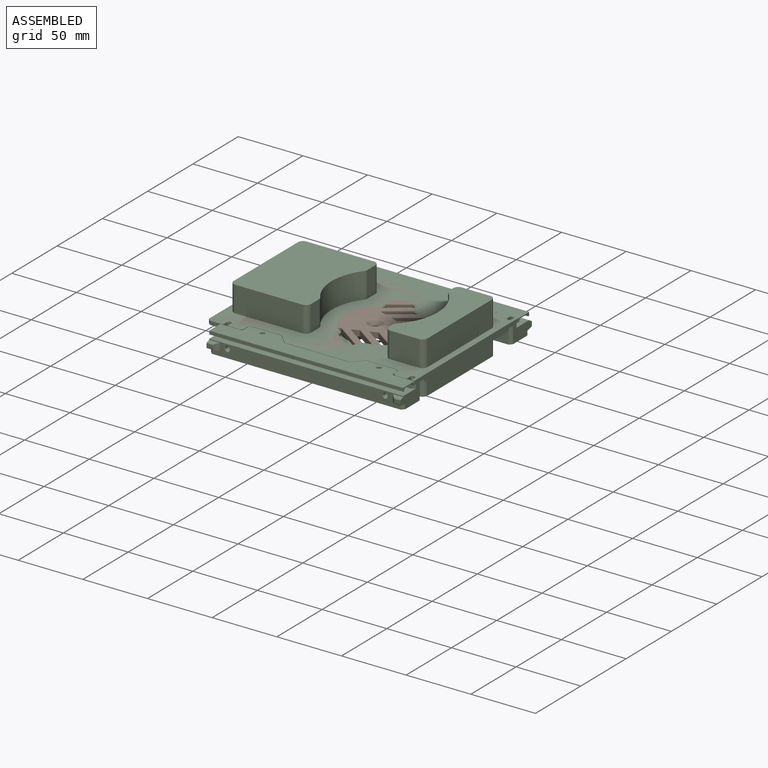
[diagram: assembled view]
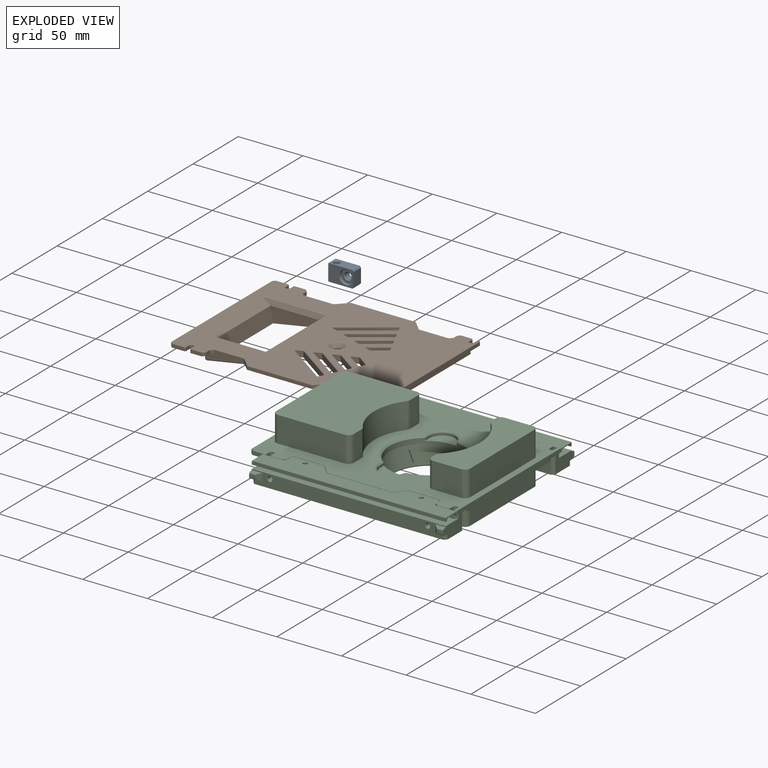
[diagram: exploded view]
GUIDED TOUR — FREECAD ASSEMBLY "clip-panneau"

This assembly has 3 components, labeled P0..P2 below (a component is one placed body or linked part; the same part can appear more than once), held together by 0 modeled joints plus 3 derived contact edges. A joint is a constraint between two components; its type names the relative motion it leaves free:
  CONTACT — a derived adjacency edge — the two components touch in the source model (clearance under 2% of the assembly's diagonal); it is measured from the geometry, not a modeled constraint.
Axis/direction vectors are unit vectors and 'through' points are millimeter coordinates, both in the assembly's world frame.

MATES
  1. CONTACT "contact_0_1": P0 <-> P1, contact direction (0.000, -1.000, 0.000) through (-19.08, -10.01, -3.50) mm (derived from contact, not a modeled constraint)
  2. CONTACT "contact_0_2": P0 <-> P2, contact direction (0.666, -0.744, 0.060) through (-14.24, 2.24, -7.81) mm (derived from contact, not a modeled constraint)
  3. CONTACT "contact_1_2": P1 <-> P2, contact direction (1.000, 0.000, 0.000) through (128.00, -21.00, -5.50) mm (derived from contact, not a modeled constraint)

ASSEMBLY ORDER
  1. P0 — the base component [order heuristic]
  2. P1 [order heuristic]
  3. P2 [order heuristic]
Order-tag legend:
  [order heuristic] — this assembly is geometrically interlocked (no collision-free removal order exists), so components are listed in mate-graph order; insertion feasibility is not verified.

Of the 3 components, 3 carry a construction recipe — the FreeCAD feature program (sketches with constraints, then the solid features that consume them) that regenerates the part from scratch, quoted from this document or from the linked companion document it references; the rest are supplied as boundary geometry only. The tour below walks the components in assembly order: each is shown spotlighted twice — in the assembled view, then in the exploded view, where a leader line traces a displaced component back to its assembled socket (components that stay in place when exploded have no leader line; saturated green if recipe-attached, orange if geometry-only; every other component desaturated gray) — followed by its recipe or geometry summary and the mates that hold it.
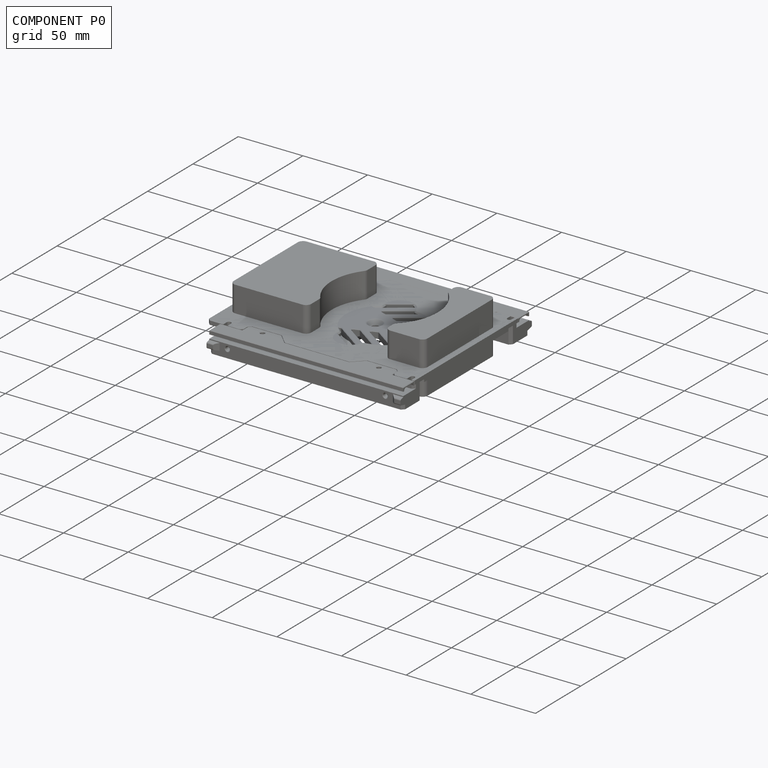
[diagram: component P0 — assembled]
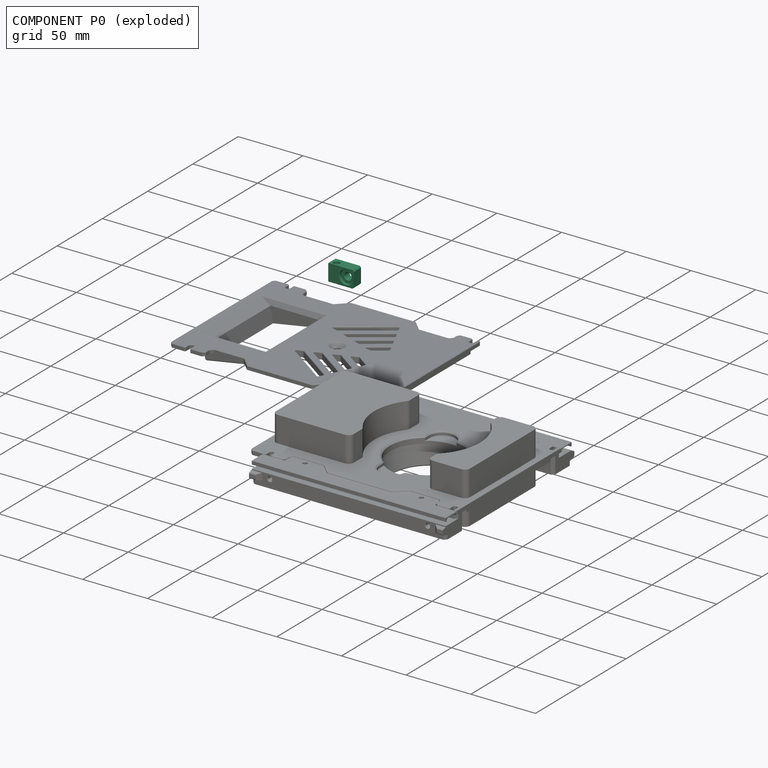
[diagram: component P0 — exploded]
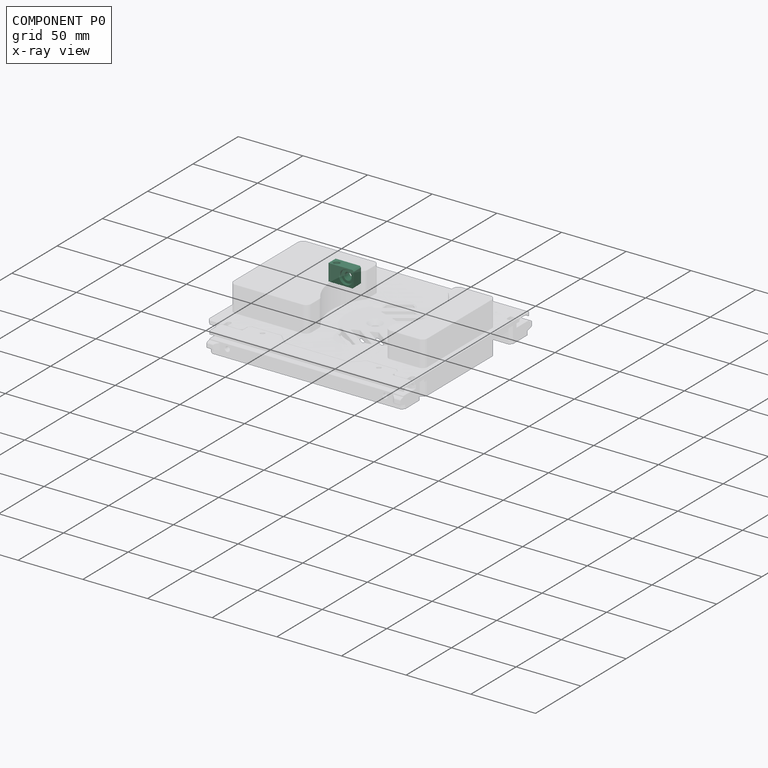
[diagram: component P0 — x-ray view]
COMPONENT P0 — recipe-attached ("clip-panneau-3mm", modeled in this document).
Held by: resting contact with P1 (derived edge); resting contact with P2 (derived edge).
Construction recipe (the document's own serialized feature program — sketch geometry with constraints, then the solid features built on it; lengths are millimeters unless a unit is written):

FEATURE [Sketcher::SketchObject] Sketch
  ArcFitTolerance = 1e-06
  AttachmentSupport = -> [Origin]
  ExternalTypes = [0]
  FullyConstrained = true
  MakeInternals = false
  MapMode = 5
  Placement = pos=(0,0,0) rot=(1,0,0;1.5708rad)
  sketch-geometry (6):
    g0: LineSegment StartX=0 StartY=-3.5 StartZ=0 EndX=-20 EndY=-3.5 EndZ=0
    g1: LineSegment StartX=-20 StartY=-3.5 StartZ=0 EndX=-20 EndY=-16.5 EndZ=0
    g2: LineSegment StartX=-20 StartY=-16.5 StartZ=0 EndX=0 EndY=-16.5 EndZ=0
    g3: LineSegment StartX=0 StartY=-16.5 StartZ=0 EndX=0 EndY=-3.5 EndZ=0
    g4: Circle CenterX=-6 CenterY=-10 CenterZ=0 NormalX=0 NormalY=0 NormalZ=1 AngleXU=0 Radius=2.7
    g5: Circle [constr] CenterX=-6 CenterY=-10 CenterZ=0 NormalX=0 NormalY=0 NormalZ=1 AngleXU=0 Radius=5
  constraints (17):
    c: Coincident(g0,g1)
    c: Coincident(g1,g2)
    c: Coincident(g2,g3)
    c: Coincident(g3,g0)
    c: Horizontal(g0)
    c: Horizontal(g2)
    c: Vertical(g1)
    c: Vertical(g3)
    c: PointOnObject(g0,g-2)
    c: Distance(g2,g-1) = 16.5
    c: Distance(g0,g-1) = 3.5
    c: Diameter(g4) = 5.4
    c: DistanceY(g4,g-1) = 10
    c: DistanceX(g4,g-1) = 6
    c: Coincident(g5,g4)
    c: Diameter(g5) = 10
    c: DistanceX(g0,g0) = 20
FEATURE [PartDesign::Pad] Pad
  Direction = (0,-1,2e-16)
  Length = 8
  Length2 = 10
  Profile = -> Sketch
  ReferenceAxis = -> Sketch [N_Axis]
  Refine = true
  SideType = 0
  Suppressed = false
  Type = 0
  Type2 = 0
FEATURE [Sketcher::SketchObject] Sketch001
  ArcFitTolerance = 1e-06
  AttachmentSupport = -> [Pad]
  ExternalTypes = [0]
  FullyConstrained = true
  MakeInternals = false
  MapMode = 5
  Placement = pos=(0,-8,0) rot=(1,0,0;1.5708rad)
  sketch-geometry (1):
    g0: Circle CenterX=-6 CenterY=-10 CenterZ=0 NormalX=0 NormalY=0 NormalZ=1 AngleXU=0 Radius=5
  constraints (2):
    c: Coincident(g0,g-3)
    c: Diameter(g0) = 10
FEATURE [PartDesign::Pocket] Pocket
  BaseFeature = -> Pad
  Direction = (0,1,-2e-16)
  Length = 2
  Length2 = 5
  Profile = -> Sketch001
  ReferenceAxis = -> Sketch001 [N_Axis]
  Refine = true
  SideType = 0
  Suppressed = false
  Type = 0
  Type2 = 0
FEATURE [Sketcher::SketchObject] Sketch002
  ArcFitTolerance = 1e-06
  AttachmentSupport = -> [Pocket]
  ExternalGeometry = -> [Pocket]
  ExternalTypes = [0,0]
  FullyConstrained = true
  MakeInternals = false
  MapMode = 5
  Placement = pos=(0,-8e-16,-3.5) rot=(0,0,1;0rad)
  sketch-geometry (2):
    g0: Circle CenterX=-16 CenterY=-4 CenterZ=0 NormalX=0 NormalY=0 NormalZ=1 AngleXU=0 Radius=2.3
    g1: LineSegment [constr] StartX=-20 StartY=-4 StartZ=0 EndX=-16 EndY=-4 EndZ=0
  constraints (5):
    c: Diameter(g0) = 4.6
    c: Symmetric(g-3,g-3,g1)
    c: Coincident(g1,g0)
    c: Horizontal(g1)
    c: DistanceX(g1,g1) = 4
FEATURE [PartDesign::Pocket] Pocket001
  BaseFeature = -> Pocket
  Direction = (0,0,-1)
  Length = 14
  Length2 = 5
  Profile = -> Sketch002
  ReferenceAxis = -> Sketch002 [N_Axis]
  Refine = true
  SideType = 0
  Suppressed = false
  Type = 0
  Type2 = 0
FEATURE [Sketcher::SketchObject] Sketch003
  ArcFitTolerance = 1e-06
  AttachmentSupport = -> [Pocket001]
  ExternalGeometry = -> [Pocket001]
  ExternalTypes = [0]
  FullyConstrained = true
  MakeInternals = false
  MapMode = 5
  Placement = pos=(-20,0,0) rot=(0.57735,-0.57735,-0.57735;2.0944rad)
  sketch-geometry (5):
    g0: LineSegment StartX=2.8e-15 StartY=-12.75 StartZ=0 EndX=-3 EndY=-12 EndZ=0
    g1: LineSegment StartX=-3 StartY=-12 StartZ=0 EndX=-3 EndY=-8 EndZ=0
    g2: LineSegment StartX=-3 StartY=-8 StartZ=0 EndX=1.8e-15 EndY=-7.25 EndZ=0
    g3: LineSegment StartX=1.8e-15 StartY=-7.25 StartZ=0 EndX=2.8e-15 EndY=-12.75 EndZ=0
    g4: LineSegment [constr] StartX=-3 StartY=-10 StartZ=0 EndX=2.2e-15 EndY=-10 EndZ=0
  constraints (14):
    c: Coincident(g0,g1)
    c: Vertical(g1)
    c: Coincident(g1,g2)
    c: PointOnObject(g2,g-3)
    c: Coincident(g2,g3)
    c: Coincident(g3,g0)
    c: PointOnObject(g0,g-3)
    c: Equal(g0,g2)
    c: Symmetric(g1,g1,g4)
    c: Symmetric(g3,g3,g4)
    c: Distance(g-1,g4) = 10
    c: DistanceY(g3,g3) = 5.5
    c: DistanceY(g1,g1) = 4
    c: DistanceX(g4,g4) = 3
FEATURE [PartDesign::Pad] Pad001
  BaseFeature = -> Pocket001
  Direction = (-1,0,0)
  Length = 5
  Length2 = 10
  Profile = -> Sketch003
  ReferenceAxis = -> Sketch003 [N_Axis]
  Refine = true
  Reversed = true
  SideType = 0
  Suppressed = false
  Type = 0
  Type2 = 0
FEATURE [PartDesign::Draft] Draft
  Angle = -45
  Base = -> Pad001 [Face8]
  BaseFeature = -> Pad001
  NeutralPlane = -> Pad001 [Face12]
  Refine = true
  SupportTransform = false
  Suppressed = false
FEATURE [PartDesign::Fillet] Fillet
  Base = -> Draft [Edge27,Edge22]
  BaseFeature = -> Draft
  Radius = 1
  Refine = true
  SupportTransform = false
  Suppressed = false
  UseAllEdges = false
FEATURE [PartDesign::Chamfer] Chamfer
  Angle = 45
  Base = -> Fillet [Edge28,Edge34]
  BaseFeature = -> Fillet
  ChamferType = 0
  FlipDirection = false
  Refine = true
  Size = 0.6
  Size2 = 1
  SupportTransform = false
  Suppressed = false
  UseAllEdges = false
FEATURE [PartDesign::Chamfer] Chamfer001
  Angle = 45
  Base = -> Chamfer [Edge38,Edge17,Edge20]
  BaseFeature = -> Chamfer
  ChamferType = 0
  FlipDirection = false
  Refine = true
  Size = 0.4
  Size2 = 1
  SupportTransform = false
  Suppressed = false
  UseAllEdges = false
FEATURE [PartDesign::Chamfer] Chamfer002
  Angle = 45
  Base = -> Chamfer001 [Edge13,Edge32]
  BaseFeature = -> Chamfer001
  ChamferType = 0
  FlipDirection = false
  Refine = true
  Size = 1
  Size2 = 1
  SupportTransform = false
  Suppressed = false
  UseAllEdges = false
FEATURE [PartDesign::Chamfer] Chamfer003
  Angle = 45
  Base = -> Chamfer002 [Face4]
  BaseFeature = -> Chamfer002
  ChamferType = 0
  FlipDirection = false
  Refine = true
  Size = 0.4
  Size2 = 1
  SupportTransform = false
  Suppressed = false
  UseAllEdges = false
FEATURE [Part::DatumPlane] DatumPlane
  AttachmentOffset = pos=(0,0,0) rot=(1,0,0;1.5708rad)
  AttachmentSupport = -> [Chamfer003]
  MapMode = 45
  Placement = pos=(-9.06941,-4,-10) rot=(0,0,1;0rad)
FEATURE [Sketcher::SketchObject] Sketch004
  ArcFitTolerance = 1e-06
  AttachmentSupport = -> [DatumPlane]
  ExternalGeometry = -> [Chamfer003]
  ExternalTypes = [0]
  FullyConstrained = true
  MakeInternals = false
  MapMode = 5
  Placement = pos=(-9.06941,-4,-10) rot=(0,0,1;0rad)
  sketch-geometry (1):
    g0: Circle CenterX=-6.93059 CenterY=0 CenterZ=0 NormalX=0 NormalY=0 NormalZ=1 AngleXU=0 Radius=2.75
  constraints (2):
    c: Coincident(g0,g-3)
    c: Diameter(g0) = 5.5
FEATURE [PartDesign::Pocket] Pocket002
  BaseFeature = -> Chamfer003
  Direction = (0,0,-1)
  Length = 3
  Length2 = 5
  Profile = -> Sketch004
  ReferenceAxis = -> Sketch004 [N_Axis]
  Refine = true
  SideType = 2
  Suppressed = false
  Type = 0
  Type2 = 0
FEATURE [PartDesign::Chamfer] Chamfer004
  Angle = 45
  Base = -> Pocket002 [Edge70,Edge73]
  BaseFeature = -> Pocket002
  ChamferType = 0
  FlipDirection = false
  Refine = true
  Size = 0.4
  Size2 = 1
  SupportTransform = false
  Suppressed = false
  UseAllEdges = false
FEATURE [PartDesign::Body] Body  label="clip-panneau-3mm"
  AllowCompound = true
  Group = -> [Sketch,Pad,Sketch001,Pocket,Sketch002,Pocket001,Sketch003,Pad001,Draft,Fillet,Chamfer,Chamfer001,Chamfer002,Chamfer003,DatumPlane,Sketch004,Pocket002,Chamfer004]
  Origin = -> Origin
  Tip = -> Chamfer004
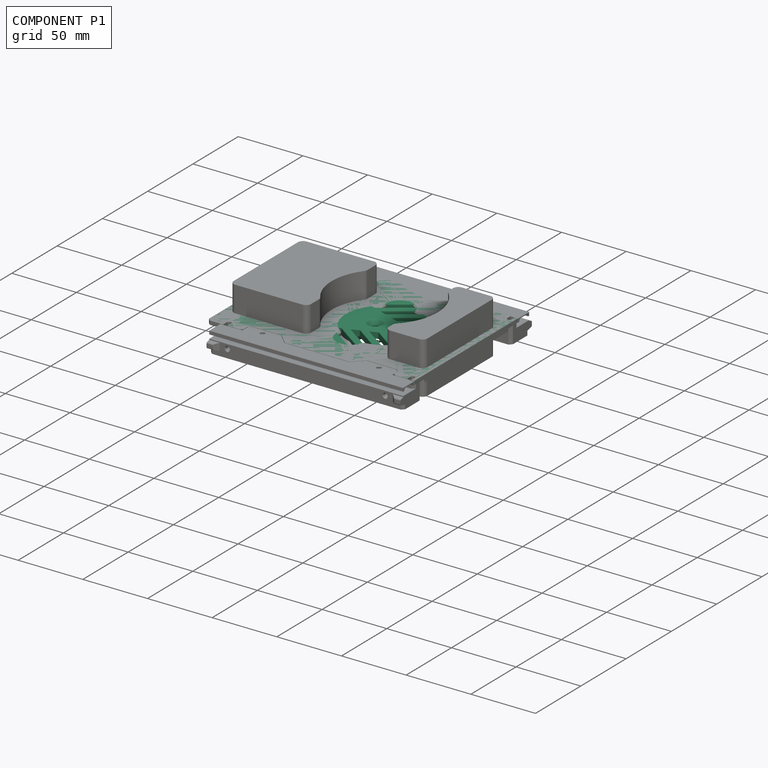
[diagram: component P1 — assembled]
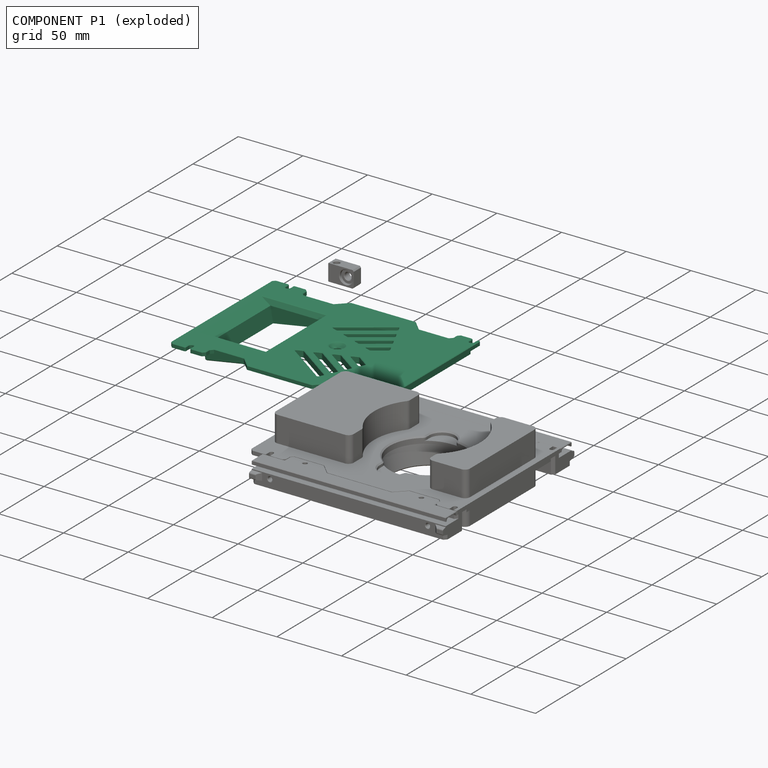
[diagram: component P1 — exploded]
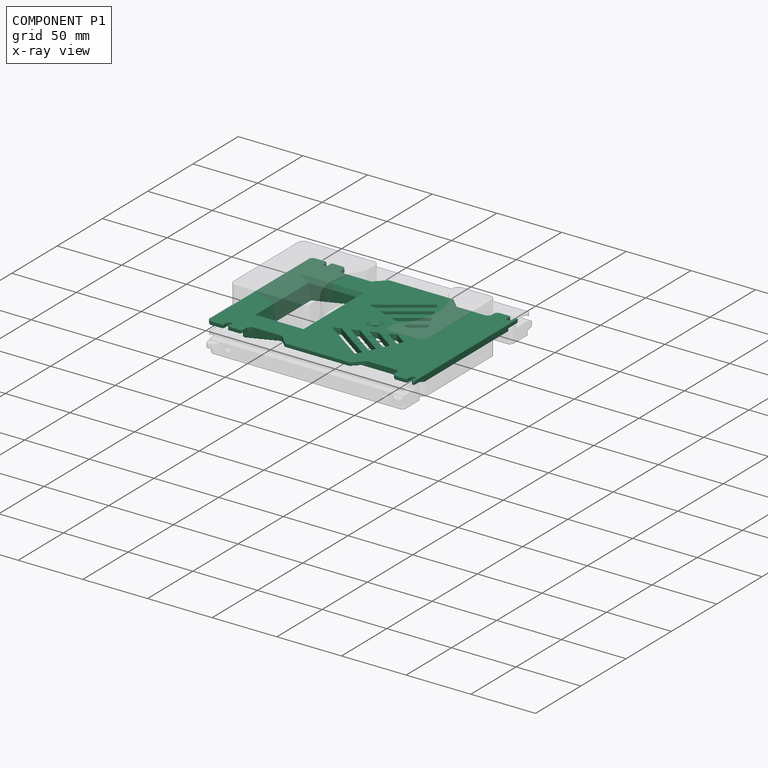
[diagram: component P1 — x-ray view]
COMPONENT P1 — recipe-attached ("Carter-top-Oled", modeled in this document).
Held by: resting contact with P0 (derived edge); resting contact with P2 (derived edge).
Construction recipe (the document's own serialized feature program — sketch geometry with constraints, then the solid features built on it; lengths are millimeters unless a unit is written):

FEATURE [PartDesign::FeatureBase] Clone001
  BaseFeature = -> Body003
  Suppressed = false
FEATURE [Part::DatumPlane] DatumPlane002
  AttachmentOffset = pos=(0,0,0) rot=(1,0,0;1.5708rad)
  AttachmentSupport = -> [Clone001]
  MapMode = 45
  Placement = pos=(55,-69.5,-2) rot=(1,0,0;1.5708rad)
FEATURE [Sketcher::SketchObject] Sketch021
  ArcFitTolerance = 1e-06
  AttachmentSupport = -> [DatumPlane002]
  ExternalGeometry = -> [Clone001]
  ExternalTypes = [0,0,0]
  FullyConstrained = true
  MakeInternals = false
  MapMode = 5
  Placement = pos=(55,-69.5,-2) rot=(1,0,0;1.5708rad)
  sketch-geometry (4):
    g0: LineSegment StartX=-24.2287 StartY=1.5 StartZ=0 EndX=-75 EndY=1.5 EndZ=0
    g1: LineSegment StartX=-75 StartY=1.5 StartZ=0 EndX=-72.0584 EndY=-15.1824 EndZ=0
    g2: LineSegment StartX=-72.0584 StartY=-15.1824 StartZ=0 EndX=-22.8181 EndY=-6.5 EndZ=0
    g3: LineSegment StartX=-22.8181 StartY=-6.5 StartZ=0 EndX=-24.2287 EndY=1.5 EndZ=0
  constraints (12):
    c: PointOnObject(g0,g-3)
    c: Horizontal(g0)
    c: Coincident(g1,g0)
    c: Coincident(g2,g1)
    c: Coincident(g3,g0)
    c: Parallel(g1,g3)
    c: Perpendicular(g2,g1)
    c: Distance(g2,g2) = 50
    c: Distance(g0,g-4) = 10
    c: Angle(g0,g2) = 0.174533
    c: Coincident(g3,g2)
    c: Distance(g2,g-5) = 3
FEATURE [PartDesign::Pad] Pad011
  BaseFeature = -> Clone001
  Direction = (0,-1,2e-16)
  Length = 75
  Length2 = 10
  Profile = -> Sketch021
  ReferenceAxis = -> Sketch021 [N_Axis]
  Refine = true
  SideType = 2
  Suppressed = false
  Type = 0
  Type2 = 0
FEATURE [Sketcher::SketchObject] Sketch022
  ArcFitTolerance = 1e-06
  AttachmentSupport = -> [Pad011]
  ExternalTypes = [0]
  FullyConstrained = true
  MakeInternals = false
  MapMode = 5
  Placement = pos=(2.42399,-3.1e-15,-13.7471) rot=(0.996195,0,0.087156;3.14159rad)
  sketch-geometry (6):
    g0: LineSegment [constr] StartX=-19.783 StartY=32 StartZ=0 EndX=30.217 EndY=107 EndZ=0
    g1: LineSegment StartX=-14.783 StartY=101 StartZ=0 EndX=-14.783 EndY=38 EndZ=0
    g2: LineSegment StartX=-14.783 StartY=38 StartZ=0 EndX=25.217 EndY=38 EndZ=0
    g3: LineSegment StartX=25.217 StartY=38 StartZ=0 EndX=25.217 EndY=101 EndZ=0
    g4: LineSegment StartX=25.217 StartY=101 StartZ=0 EndX=-14.783 EndY=101 EndZ=0
    g5: GeomPoint [constr] X=5.21702 Y=69.5 Z=0
  constraints (14):
    c: Coincident(g0,g-5)
    c: Coincident(g0,g-6)
    c: Coincident(g1,g2)
    c: Coincident(g2,g3)
    c: Coincident(g3,g4)
    c: Coincident(g4,g1)
    c: Vertical(g1)
    c: Vertical(g3)
    c: Horizontal(g2)
    c: Horizontal(g4)
    c: Symmetric(g3,g1,g5)
    c: Symmetric(g0,g0,g5)
    c: DistanceY(g3,g3) = 63
    c: Distance(g4,g4) = 40
FEATURE [PartDesign::Pocket] Pocket011
  BaseFeature = -> Pad011
  Direction = (-0.173648,0,0.984808)
  Length = 60
  Length2 = 5
  Profile = -> Sketch022
  ReferenceAxis = -> Sketch022 [N_Axis]
  Refine = true
  SideType = 0
  Suppressed = false
  Type = 0
  Type2 = 0
FEATURE [PartDesign::Chamfer] Chamfer016
  Angle = 45
  Base = -> Pocket011 [Edge167,Edge166,Edge165]
  BaseFeature = -> Pocket011
  ChamferType = 1
  FlipDirection = false
  Refine = true
  Size = 2
  Size2 = 4
  SupportTransform = false
  Suppressed = false
  UseAllEdges = false
FEATURE [PartDesign::Chamfer] Chamfer017
  Angle = 45
  Base = -> Chamfer016 [Edge2]
  BaseFeature = -> Chamfer016
  ChamferType = 1
  FlipDirection = false
  Refine = true
  Size = 8
  Size2 = 4.1
  SupportTransform = false
  Suppressed = false
  UseAllEdges = false
FEATURE [PartDesign::Fillet] Fillet006
  Base = -> Chamfer017 [Edge240,Edge237,Edge238,Edge239]
  BaseFeature = -> Chamfer017
  Radius = 2
  Refine = true
  SupportTransform = false
  Suppressed = false
  UseAllEdges = false
FEATURE [Sketcher::SketchObject] Sketch023
  ArcFitTolerance = 1e-06
  AttachmentSupport = -> [Fillet006]
  ExternalGeometry = -> [Fillet006]
  ExternalTypes = [0,0]
  FullyConstrained = true
  MakeInternals = false
  MapMode = 5
  Placement = pos=(2.42399,-3.1e-15,-13.7471) rot=(0.996195,0,0.087156;3.14159rad)
  sketch-geometry (10):
    g0: LineSegment [constr] StartX=-14.783 StartY=38 StartZ=0 EndX=25.217 EndY=101 EndZ=0
    g1: LineSegment [constr] StartX=-16.543 StartY=36.62 StartZ=0 EndX=26.977 EndY=36.62 EndZ=0
    g2: LineSegment [constr] StartX=26.977 StartY=36.62 StartZ=0 EndX=26.977 EndY=102.38 EndZ=0
    g3: LineSegment [constr] StartX=26.977 StartY=102.38 StartZ=0 EndX=-16.543 EndY=102.38 EndZ=0
    g4: LineSegment [constr] StartX=-16.543 StartY=102.38 StartZ=0 EndX=-16.543 EndY=36.62 EndZ=0
    g5: GeomPoint [constr] X=5.21702 Y=69.5 Z=0
    g6: Circle CenterX=26.977 CenterY=102.38 CenterZ=0 NormalX=0 NormalY=0 NormalZ=1 AngleXU=0 Radius=1.7
    g7: Circle CenterX=-16.543 CenterY=102.38 CenterZ=0 NormalX=0 NormalY=0 NormalZ=1 AngleXU=0 Radius=1.7
    g8: Circle CenterX=-16.543 CenterY=36.62 CenterZ=0 NormalX=0 NormalY=0 NormalZ=1 AngleXU=0 Radius=1.7
    g9: Circle CenterX=26.977 CenterY=36.62 CenterZ=0 NormalX=0 NormalY=0 NormalZ=1 AngleXU=0 Radius=1.7
  constraints (22):
    c: Coincident(g0,g-4)
    c: Coincident(g0,g-3)
    c: Coincident(g1,g2)
    c: Coincident(g2,g3)
    c: Coincident(g3,g4)
    c: Coincident(g4,g1)
    c: Horizontal(g1)
    c: Horizontal(g3)
    c: Vertical(g2)
    c: Vertical(g4)
    c: Symmetric(g3,g1,g5)
    c: Symmetric(g0,g0,g5)
    c: Coincident(g6,g2)
    c: Coincident(g7,g3)
    c: Coincident(g8,g1)
    c: Coincident(g9,g1)
    c: Equal(g9,g8)
    c: Equal(g8,g7)
    c: Equal(g7,g6)
    c: Diameter(g6) = 3.4
    c: DistanceY(g2,g2) = 65.76
    c: DistanceX(g3,g3) = 43.52
FEATURE [PartDesign::Pocket] Pocket012
  BaseFeature = -> Fillet006
  Direction = (-0.173648,0,0.984808)
  Length = 5
  Length2 = 5
  Profile = -> Sketch023
  ReferenceAxis = -> Sketch023 [N_Axis]
  Refine = true
  SideType = 0
  Suppressed = false
  Type = 0
  Type2 = 0
FEATURE [PartDesign::Chamfer] Chamfer018
  Angle = 45
  Base = -> Pocket012 [Edge71,Edge76,Edge69,Edge70]
  BaseFeature = -> Pocket012
  ChamferType = 0
  FlipDirection = false
  Refine = true
  Size = 0.2
  Size2 = 1
  SupportTransform = false
  Suppressed = false
  UseAllEdges = false
FEATURE [PartDesign::Chamfer] Chamfer019
  Angle = 45
  Base = -> Chamfer018 [Edge26]
  BaseFeature = -> Chamfer018
  ChamferType = 0
  FlipDirection = false
  Refine = true
  Size = 1.5
  Size2 = 1
  SupportTransform = false
  Suppressed = false
  UseAllEdges = false
FEATURE [PartDesign::Chamfer] Chamfer020
  Angle = 45
  Base = -> Chamfer019 [Edge13]
  BaseFeature = -> Chamfer019
  ChamferType = 0
  FlipDirection = false
  Refine = true
  Size = 0.6
  Size2 = 1
  SupportTransform = false
  Suppressed = false
  UseAllEdges = false
FEATURE [Sketcher::SketchObject] Sketch024
  ArcFitTolerance = 1e-06
  AttachmentSupport = -> [Chamfer020]
  ExternalGeometry = -> [Chamfer020]
  ExternalTypes = [0,0]
  FullyConstrained = true
  MakeInternals = false
  MapMode = 5
  Placement = pos=(0,0,-0.5) rot=(0,0,1;0rad)
  sketch-geometry (5):
    g0: Circle [constr] CenterX=97 CenterY=-69.5 CenterZ=0 NormalX=0 NormalY=0 NormalZ=1 AngleXU=0 Radius=33
    g1: LineSegment [constr] StartX=97 StartY=-69.5 StartZ=0 EndX=130 EndY=-69.5 EndZ=0
    g2: Circle CenterX=45 CenterY=-69.5 CenterZ=0 NormalX=0 NormalY=0 NormalZ=1 AngleXU=0 Radius=3.9
    g3: Circle CenterX=59.7 CenterY=-69.5 CenterZ=0 NormalX=0 NormalY=0 NormalZ=1 AngleXU=0 Radius=2.7
    g4: Circle CenterX=97 CenterY=-69.5 CenterZ=0 NormalX=0 NormalY=0 NormalZ=1 AngleXU=0 Radius=8.5
  constraints (13):
    c: Tangent(g0,g-4)
    c: Diameter(g0) = 66
    c: Coincident(g1,g0)
    c: Symmetric(g-4,g-4,g1)
    c: Horizontal(g1)
    c: DistanceX(g2,g0) = 52
    c: PointOnObject(g2,g1)
    c: Diameter(g2) = 7.8
    c: Diameter(g3) = 5.4
    c: PointOnObject(g3,g1)
    c: DistanceX(g3,g0) = 37.3
    c: Coincident(g4,g0)
    c: Diameter(g4) = 17
FEATURE [PartDesign::Pad] Pad012
  BaseFeature = -> Chamfer020
  Direction = (0,0,1)
  Length = 7
  Length2 = 10
  Profile = -> Sketch024 [Edge1]
  ReferenceAxis = -> Sketch024 [N_Axis]
  Refine = true
  Reversed = true
  SideType = 0
  Suppressed = false
  Type = 0
  Type2 = 0
FEATURE [PartDesign::Pocket] Pocket013
  BaseFeature = -> Pad012
  Direction = (0,0,-1)
  Length = 10
  Length2 = 5
  Profile = -> Sketch024 [Edge2]
  ReferenceAxis = -> Sketch024 [N_Axis]
  Refine = true
  SideType = 0
  Suppressed = false
  Type = 0
  Type2 = 0
FEATURE [Sketcher::SketchObject] Sketch025
  ArcFitTolerance = 1e-06
  AttachmentSupport = -> [Pocket013]
  ExternalGeometry = -> [Sketch024]
  ExternalTypes = [0]
  FullyConstrained = true
  MakeInternals = true
  MapMode = 5
  Placement = pos=(0,0,-5.5) rot=(1,0,0;3.14159rad)
FEATURE [PartDesign::Pocket] Pocket014
  BaseFeature = -> Pocket013
  Direction = (0,0,1)
  Length = 3
  Length2 = 5
  Profile = -> Sketch025
  ReferenceAxis = -> Sketch025 [N_Axis]
  Refine = true
  SideType = 0
  Suppressed = false
  Type = 0
  Type2 = 0
FEATURE [PartDesign::Chamfer] Chamfer021
  Angle = 45
  Base = -> Pocket014 [Edge58]
  BaseFeature = -> Pocket014
  ChamferType = 0
  FlipDirection = false
  Refine = true
  Size = 1
  Size2 = 1
  SupportTransform = false
  Suppressed = false
  UseAllEdges = false
FEATURE [PartDesign::Chamfer] Chamfer022
  Angle = 45
  Base = -> Chamfer021 [Edge77]
  BaseFeature = -> Chamfer021
  ChamferType = 0
  FlipDirection = false
  Refine = true
  Size = 1
  Size2 = 1
  SupportTransform = false
  Suppressed = false
  UseAllEdges = false
FEATURE [Sketcher::SketchObject] Sketch026
  ArcFitTolerance = 1e-06
  AttachmentSupport = -> [Chamfer022]
  ExternalGeometry = -> [Chamfer022]
  ExternalTypes = [0]
  FullyConstrained = true
  MakeInternals = true
  MapMode = 5
  Placement = pos=(0,0,-5.5) rot=(1,0,0;3.14159rad)
  sketch-geometry (26):
    g0: LineSegment [constr] StartX=97 StartY=69.5 StartZ=0 EndX=40.6184 EndY=90.0212 EndZ=0
    g1: LineSegment [constr] StartX=97 StartY=69.5 StartZ=0 EndX=75.8691 EndY=114.815 EndZ=0
    g2: LineSegment StartX=40.6184 StartY=90.0212 StartZ=0 EndX=75.8691 EndY=114.815 EndZ=0
    g3: LineSegment StartX=75.8691 StartY=114.815 StartZ=0 EndX=78.0156 EndY=110.212 EndZ=0
    g4: LineSegment StartX=78.0156 StartY=110.212 StartZ=0 EndX=46.3457 EndY=87.9366 EndZ=0
    g5: LineSegment StartX=46.3457 StartY=87.9366 StartZ=0 EndX=40.6184 EndY=90.0212 EndZ=0
    g6: LineSegment StartX=57.8003 StartY=83.7675 StartZ=0 EndX=82.3086 EndY=101.006 EndZ=0
    g7: LineSegment StartX=82.3086 StartY=101.006 StartZ=0 EndX=80.1621 EndY=105.609 EndZ=0
    g8: LineSegment StartX=80.1621 StartY=105.609 StartZ=0 EndX=52.073 EndY=85.8521 EndZ=0
    g9: LineSegment StartX=52.073 StartY=85.8521 StartZ=0 EndX=57.8003 EndY=83.7675 EndZ=0
    g10: LineSegment StartX=63.5276 StartY=81.683 StartZ=0 EndX=84.4551 EndY=96.4027 EndZ=0
    g11: LineSegment StartX=84.4551 StartY=96.4027 StartZ=0 EndX=86.6016 EndY=91.7995 EndZ=0
    g12: LineSegment StartX=86.6016 StartY=91.7995 StartZ=0 EndX=69.2549 EndY=79.5984 EndZ=0
    g13: LineSegment StartX=69.2549 StartY=79.5984 StartZ=0 EndX=63.5276 EndY=81.683 EndZ=0
    g14: LineSegment [constr] StartX=97 StartY=69.5 StartZ=0 EndX=68.6822 EndY=109.76 EndZ=0
    g15: Circle [constr] CenterX=70.1204 CenterY=107.715 CenterZ=0 NormalX=0 NormalY=0 NormalZ=1 AngleXU=0 Radius=2.5
    g16: Circle [constr] CenterX=75.8735 CenterY=99.5361 CenterZ=0 NormalX=0 NormalY=0 NormalZ=1 AngleXU=0 Radius=2.5
    g17: Circle [constr] CenterX=81.6266 CenterY=91.3568 CenterZ=0 NormalX=0 NormalY=0 NormalZ=1 AngleXU=0 Radius=2.5
    g18: Circle [constr] CenterX=78.7501 CenterY=95.4465 CenterZ=0 NormalX=0 NormalY=0 NormalZ=1 AngleXU=0 Radius=2.5
    g19: Circle [constr] CenterX=72.997 CenterY=103.626 CenterZ=0 NormalX=0 NormalY=0 NormalZ=1 AngleXU=0 Radius=2.5
    g20: LineSegment StartX=74.9822 StartY=77.5138 StartZ=0 EndX=88.7481 EndY=87.1963 EndZ=0
    g21: LineSegment StartX=88.7481 StartY=87.1963 StartZ=0 EndX=90.8946 EndY=82.5932 EndZ=0
    g22: LineSegment StartX=90.8946 StartY=82.5932 StartZ=0 EndX=80.7094 EndY=75.4293 EndZ=0
    g23: LineSegment StartX=80.7094 StartY=75.4293 StartZ=0 EndX=74.9822 EndY=77.5138 EndZ=0
    g24: Circle [constr] CenterX=87.3797 CenterY=83.1774 CenterZ=0 NormalX=0 NormalY=0 NormalZ=1 AngleXU=0 Radius=2.5
    g25: Circle [constr] CenterX=84.5032 CenterY=87.2671 CenterZ=0 NormalX=0 NormalY=0 NormalZ=1 AngleXU=0 Radius=2.5
  constraints (76):
    c: Coincident(g0,g-3)
    c: Coincident(g1,g0)
    c: Coincident(g2,g0)
    c: Coincident(g2,g1)
    c: Coincident(g3,g1)
    c: PointOnObject(g3,g1)
    c: Coincident(g4,g3)
    c: PointOnObject(g4,g0)
    c: Coincident(g5,g4)
    c: Coincident(g5,g0)
    c: Parallel(g4,g2)
    c: PointOnObject(g6,g0)
    c: PointOnObject(g6,g1)
    c: Coincident(g6,g7)
    c: PointOnObject(g7,g1)
    c: Coincident(g7,g8)
    c: PointOnObject(g8,g0)
    c: Coincident(g8,g9)
    c: Coincident(g9,g6)
    c: Coincident(g10,g11)
    c: PointOnObject(g11,g1)
    c: Coincident(g11,g12)
    c: PointOnObject(g12,g0)
    c: Coincident(g12,g13)
    c: Coincident(g13,g10)
    c: Parallel(g12,g10)
    c: Parallel(g8,g6)
    c: Angle(g1,g-1) = 1.13446
    c: Angle(g0,g-1) = 0.349066
    c: Parallel(g8,g10)
    c: Coincident(g14,g0)
    c: PointOnObject(g14,g2)
    c: Perpendicular(g2,g14)
    c: Parallel(g6,g4)
    c: PointOnObject(g10,g0)
    c: PointOnObject(g10,g1)
    c: Tangent(g15,g4)
    c: Tangent(g16,g6)
    c: Tangent(g17,g12)
    c: Tangent(g18,g10)
    c: Tangent(g19,g8)
    c: Equal(g19,g15)
    c: Equal(g15,g16)
    c: Equal(g16,g18)
    c: Equal(g18,g17)
    c: Tangent(g19,g4)
    c: Tangent(g15,g2)
    c: Tangent(g16,g8)
    c: Tangent(g18,g6)
    c: Tangent(g17,g10)
    c: Distance(g18,g15) = 10
    c: PointOnObject(g19,g14)
    c: PointOnObject(g15,g14)
    c: PointOnObject(g16,g14)
    c: PointOnObject(g18,g14)
    c: PointOnObject(g17,g14)
    c: Distance(g1,g1) = 50
    c: Distance(g0,g0) = 60
    c: PointOnObject(g20,g0)
    c: PointOnObject(g20,g1)
    c: Coincident(g21,g20)
    c: PointOnObject(g21,g1)
    c: Coincident(g22,g21)
    c: PointOnObject(g22,g0)
    c: Coincident(g23,g22)
    c: Coincident(g23,g20)
    c: Parallel(g22,g20)
    c: Parallel(g20,g12)
    c: PointOnObject(g24,g14)
    c: Tangent(g24,g20)
    c: PointOnObject(g25,g14)
    c: Tangent(g25,g12)
    c: Tangent(g25,g20)
    c: Tangent(g24,g22)
    c: Equal(g24,g25)
    c: Equal(g25,g17)
FEATURE [PartDesign::Pocket] Pocket015
  BaseFeature = -> Chamfer022
  Direction = (0,0,1)
  Length = 5
  Length2 = 5
  Profile = -> Sketch026
  ReferenceAxis = -> Sketch026 [N_Axis]
  Refine = true
  SideType = 0
  Suppressed = false
  Type = 0
  Type2 = 0
FEATURE [PartDesign::Fillet] Fillet007
  Base = -> Pocket015 [Edge92,Edge93,Edge84,Edge89,Edge76,Edge77,Edge81,Edge79,Edge87,Edge85,Edge97,Edge95,Edge100,Edge103,Edge105,Edge101]
  BaseFeature = -> Pocket015
  Radius = 1
  Refine = true
  SupportTransform = false
  Suppressed = false
  UseAllEdges = false
FEATURE [PartDesign::Mirrored] Mirrored002
  BaseFeature = -> Fillet007
  MirrorPlane = -> DatumPlane002
  Originals = -> [Pocket015,Fillet007]
  Refine = true
  Suppressed = false
  TransformMode = 0
FEATURE [PartDesign::Chamfer] Chamfer023
  Angle = 45
  Base = -> Mirrored002 [Edge508]
  BaseFeature = -> Mirrored002
  ChamferType = 0
  FlipDirection = false
  Refine = true
  Size = 3
  Size2 = 1
  SupportTransform = false
  Suppressed = false
  UseAllEdges = false
FEATURE [PartDesign::Chamfer] Chamfer024
  Angle = 45
  Base = -> Chamfer023 [Face4]
  BaseFeature = -> Chamfer023
  ChamferType = 0
  FlipDirection = false
  Refine = true
  Size = 0.4
  Size2 = 1
  SupportTransform = false
  Suppressed = false
  UseAllEdges = false
FEATURE [PartDesign::Body] Body006  label="Carter-top-Oled"
  AllowCompound = true
  Group = -> [Clone001,DatumPlane002,Sketch021,Pad011,Sketch022,Pocket011,Chamfer016,Chamfer017,Fillet006,Sketch023,Pocket012,Chamfer018,Chamfer019,Chamfer020,Sketch024,Pad012,Pocket013,Sketch025,Pocket014,Chamfer021,Chamfer022,Sketch026,Pocket015,Fillet007,Mirrored002,Chamfer023,Chamfer024]
  Origin = -> Origin016
  Tip = -> Chamfer024
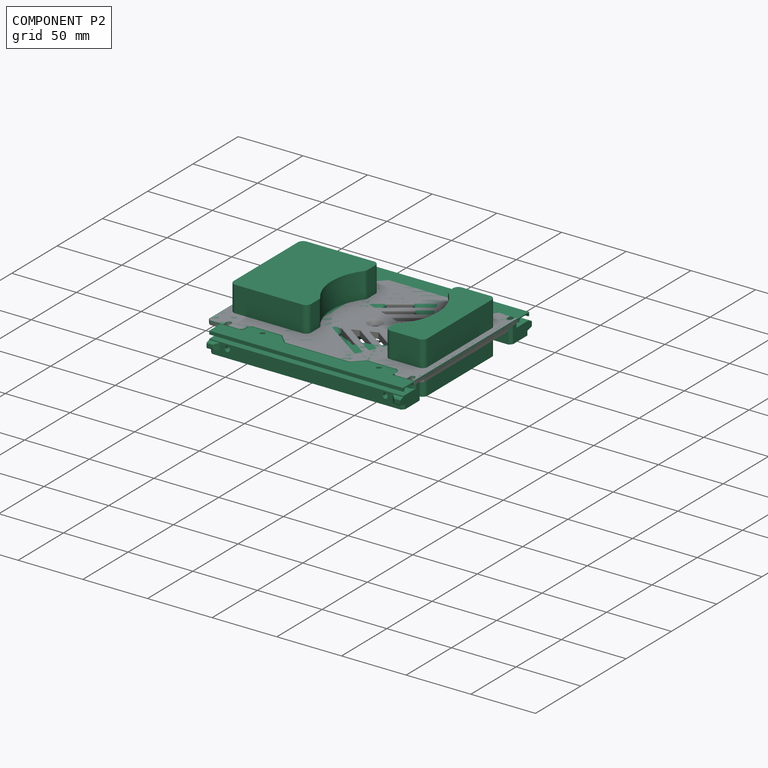
[diagram: component P2 — assembled]
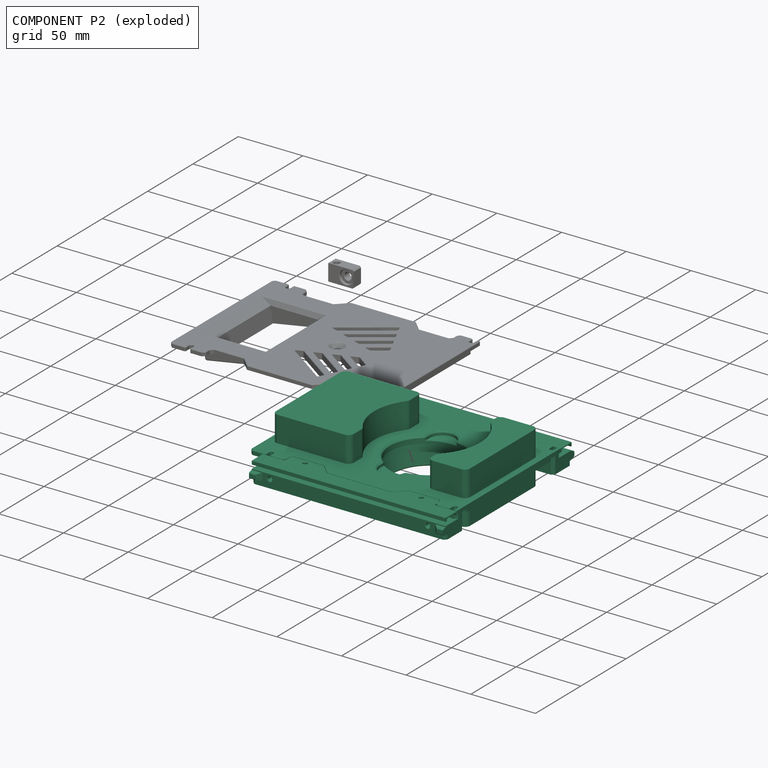
[diagram: component P2 — exploded]
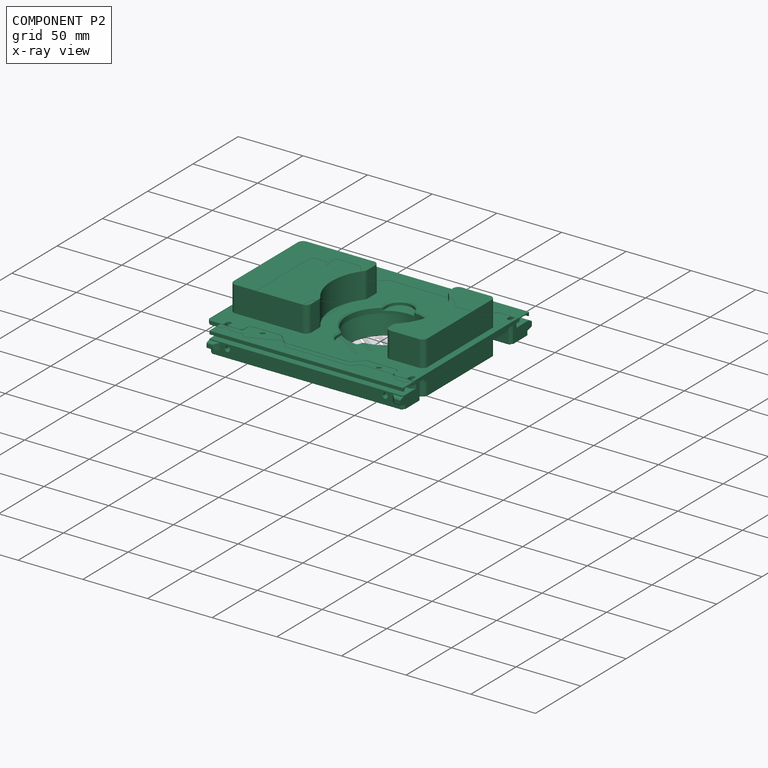
[diagram: component P2 — x-ray view]
COMPONENT P2 — recipe-attached ("carter-top-asm", modeled in this document).
Held by: resting contact with P0 (derived edge); resting contact with P1 (derived edge).
Construction recipe (the document's own serialized feature program — sketch geometry with constraints, then the solid features built on it; lengths are millimeters unless a unit is written):

FEATURE [PartDesign::ShapeBinder] CopyChamfer009
  TraceSupport = false
FEATURE [PartDesign::ShapeBinder] ShapeBinder
  Support = -> [Body002]
  TraceSupport = false
FEATURE [Sketcher::SketchObject] Sketch013
  ArcFitTolerance = 1e-06
  AttachmentSupport = -> [CopyChamfer009]
  ExternalGeometry = -> [CopyChamfer009,ShapeBinder]
  ExternalTypes = [0,0,0,0,0,0,0,0,0,0,0,0]
  FullyConstrained = true
  MakeInternals = false
  MapMode = 5
  Placement = pos=(0,-8e-16,-3.5) rot=(0,0,1;0rad)
  sketch-geometry (14):
    g0: Circle CenterX=-16 CenterY=-16 CenterZ=0 NormalX=0 NormalY=0 NormalZ=1 AngleXU=0 Radius=1.7
    g1: Circle CenterX=126 CenterY=-16 CenterZ=0 NormalX=0 NormalY=0 NormalZ=1 AngleXU=0 Radius=1.7
    g2: LineSegment StartX=130 StartY=-69.5 StartZ=0 EndX=130 EndY=-12 EndZ=0
    g3: LineSegment StartX=130 StartY=-12 StartZ=0 EndX=113 EndY=-12 EndZ=0
    g4: LineSegment StartX=113 StartY=-12 StartZ=0 EndX=113 EndY=-20 EndZ=0
    g5: LineSegment StartX=113 StartY=-20 StartZ=0 EndX=88 EndY=-20 EndZ=0
    g6: LineSegment StartX=88 StartY=-20 StartZ=0 EndX=80 EndY=-12 EndZ=0
    g7: LineSegment StartX=80 StartY=-12 StartZ=0 EndX=30 EndY=-12 EndZ=0
    g8: LineSegment StartX=30 StartY=-12 StartZ=0 EndX=22 EndY=-20 EndZ=0
    g9: LineSegment StartX=22 StartY=-20 StartZ=0 EndX=-3 EndY=-20 EndZ=0
    g10: LineSegment StartX=-3 StartY=-20 StartZ=0 EndX=-3 EndY=-12 EndZ=0
    g11: LineSegment StartX=-3 StartY=-12 StartZ=0 EndX=-20 EndY=-12 EndZ=0
    g12: LineSegment StartX=-20 StartY=-12 StartZ=0 EndX=-20 EndY=-69.5 EndZ=0
    g13: LineSegment StartX=-20 StartY=-69.5 StartZ=0 EndX=130 EndY=-69.5 EndZ=0
  constraints (33):
    c: Coincident(g0,g-3)
    c: Diameter(g0) = 3.4
    c: Coincident(g1,g-4)
    c: Equal(g1,g0)
    c: Vertical(g2)
    c: Coincident(g3,g2)
    c: Horizontal(g3)
    c: PointOnObject(g-5,g2)
    c: Coincident(g4,g3)
    c: Vertical(g4)
    c: Coincident(g5,g4)
    c: Horizontal(g5)
    c: Coincident(g6,g5)
    c: Coincident(g7,g6)
    c: Coincident(g7,g8)
    c: Coincident(g8,g9)
    c: Horizontal(g9)
    c: Coincident(g9,g10)
    c: Vertical(g10)
    c: Coincident(g10,g11)
    c: Coincident(g11,g12)
    c: Vertical(g12)
    c: Equal(g2,g12)
    c: Coincident(g13,g12)
    c: Coincident(g13,g2)
    c: Distance(g-6,g13) = 49.5
    c: Coincident(g11,g-14)
    c: Coincident(g-14,g10)
    c: Coincident(g7,g-12)
    c: Coincident(g8,g-12)
    c: Coincident(g6,g-11)
    c: Coincident(g5,g-10)
    c: Coincident(g3,g-9)
FEATURE [PartDesign::Pad] Pad006
  Direction = (0,0,1)
  Length = 3
  Length2 = 10
  Profile = -> Sketch013
  ReferenceAxis = -> Sketch013 [N_Axis]
  Refine = true
  SideType = 0
  Suppressed = false
  Type = 0
  Type2 = 0
FEATURE [Sketcher::SketchObject] Sketch014
  ArcFitTolerance = 1e-06
  AttachmentSupport = -> [Pad006]
  ExternalGeometry = -> [Pad006]
  ExternalTypes = [0,0]
  FullyConstrained = true
  MakeInternals = false
  MapMode = 5
  Placement = pos=(0,0,-3.5) rot=(1,0,0;3.14159rad)
  sketch-geometry (4):
    g0: LineSegment StartX=-20 StartY=69.5 StartZ=0 EndX=-20 EndY=21 EndZ=0
    g1: LineSegment StartX=-20 StartY=21 StartZ=0 EndX=130 EndY=21 EndZ=0
    g2: LineSegment StartX=130 StartY=21 StartZ=0 EndX=130 EndY=69.5 EndZ=0
    g3: LineSegment StartX=130 StartY=69.5 StartZ=0 EndX=-20 EndY=69.5 EndZ=0
  constraints (10):
    c: Coincident(g0,g1)
    c: Coincident(g1,g2)
    c: Coincident(g2,g3)
    c: Coincident(g3,g0)
    c: Vertical(g0)
    c: Vertical(g2)
    c: Horizontal(g1)
    c: Coincident(g0,g-3)
    c: Coincident(g2,g-3)
    c: Distance(g1,g-4) = 1
FEATURE [PartDesign::Pad] Pad007
  BaseFeature = -> Pad006
  Direction = (0,0,-1)
  Length = 2
  Length2 = 10
  Profile = -> Sketch014
  ReferenceAxis = -> Sketch014 [N_Axis]
  Refine = true
  SideType = 0
  Suppressed = false
  Type = 0
  Type2 = 0
FEATURE [PartDesign::Chamfer] Chamfer011
  Angle = 45
  Base = -> Pad007 [Edge38,Edge40,Edge31,Edge2,Edge33,Edge32]
  BaseFeature = -> Pad007
  ChamferType = 0
  FlipDirection = false
  Refine = true
  Size = 2
  Size2 = 1
  SupportTransform = false
  Suppressed = false
  UseAllEdges = false
FEATURE [Sketcher::SketchObject] Sketch019
  ArcFitTolerance = 1e-06
  AttachmentSupport = -> [Chamfer011]
  ExternalGeometry = -> [Chamfer011]
  ExternalTypes = [0,0,0,0]
  FullyConstrained = true
  MakeInternals = false
  MapMode = 5
  Placement = pos=(0,0,-0.5) rot=(0,0,1;0rad)
  sketch-geometry (8):
    g0: ArcOfCircle CenterX=126 CenterY=-16 CenterZ=0 NormalX=0 NormalY=0 NormalZ=1 AngleXU=0 Radius=1.7 StartAngle=3.14159 EndAngle=6.28319
    g1: ArcOfCircle CenterX=126 CenterY=-12 CenterZ=0 NormalX=0 NormalY=0 NormalZ=1 AngleXU=0 Radius=1.7 StartAngle=-9e-16 EndAngle=3.14159
    g2: LineSegment StartX=124.3 StartY=-16 StartZ=0 EndX=124.3 EndY=-12 EndZ=0
    g3: LineSegment StartX=127.7 StartY=-16 StartZ=0 EndX=127.7 EndY=-12 EndZ=0
    g4: ArcOfCircle CenterX=-16 CenterY=-16 CenterZ=0 NormalX=0 NormalY=0 NormalZ=1 AngleXU=0 Radius=1.7 StartAngle=3.14159 EndAngle=6.28319
    g5: ArcOfCircle CenterX=-16 CenterY=-12 CenterZ=0 NormalX=0 NormalY=0 NormalZ=1 AngleXU=0 Radius=1.7 StartAngle=0 EndAngle=3.14159
    g6: LineSegment StartX=-17.7 StartY=-16 StartZ=0 EndX=-17.7 EndY=-12 EndZ=0
    g7: LineSegment StartX=-14.3 StartY=-16 StartZ=0 EndX=-14.3 EndY=-12 EndZ=0
  constraints (18):
    c: Tangent(g0,g2) = 1.5708
    c: Tangent(g0,g3) = -1.5708
    c: Tangent(g1,g2) = 1.5708
    c: Tangent(g1,g3) = -1.5708
    c: Equal(g0,g1)
    c: Coincident(g0,g-4)
    c: PointOnObject(g1,g-5)
    c: Tangent(g4,g6) = 1.5708
    c: Tangent(g4,g7) = -1.5708
    c: Tangent(g5,g6) = 1.5708
    c: Tangent(g5,g7) = -1.5708
    c: Equal(g4,g5)
    c: Coincident(g4,g-3)
    c: PointOnObject(g5,g-6)
    c: Vertical(g6)
    c: Equal(g4,g-3)
    c: Vertical(g3)
    c: Equal(g0,g-4)
FEATURE [PartDesign::Pocket] Pocket010
  BaseFeature = -> Chamfer011
  Direction = (0,0,-1)
  Length = 5
  Length2 = 5
  Profile = -> Sketch019
  ReferenceAxis = -> Sketch019 [N_Axis]
  Refine = true
  SideType = 0
  Suppressed = false
  Type = 0
  Type2 = 0
FEATURE [PartDesign::Fillet] Fillet004
  Base = -> Pocket010 [Edge68,Edge65,Edge81,Edge2,Edge4]
  BaseFeature = -> Pocket010
  Radius = 1
  Refine = true
  SupportTransform = false
  Suppressed = false
  UseAllEdges = false
FEATURE [PartDesign::Pad] Pad009
  BaseFeature = -> Fillet004
  Direction = (-1,0,0)
  Length = 10
  Length2 = 10
  Profile = -> Fillet004 [Face8]
  Refine = true
  SideType = 0
  Suppressed = false
  Type = 0
  Type2 = 0
FEATURE [PartDesign::Chamfer] Chamfer015
  Angle = 45
  Base = -> Pad009 [Edge98,Edge93]
  BaseFeature = -> Pad009
  ChamferType = 0
  FlipDirection = false
  Refine = true
  Size = 2
  Size2 = 1
  SupportTransform = false
  Suppressed = false
  UseAllEdges = false
FEATURE [PartDesign::Mirrored] Mirrored001
  BaseFeature = -> Chamfer015
  MirrorPlane = -> Chamfer011 [Face24]
  Refine = true
  Suppressed = false
  TransformMode = 1
FEATURE [PartDesign::Body] Body003  label="carter-top-base"
  AllowCompound = true
  Group = -> [CopyChamfer009,Sketch013,Pad006,Sketch014,Pad007,Chamfer011,Sketch019,Pocket010,Fillet004,Pad009,Chamfer015,Mirrored001,ShapeBinder]
  Origin = -> Origin006
  Tip = -> Mirrored001
FEATURE [PartDesign::FeatureBase] Clone
  BaseFeature = -> Body003
  Suppressed = false
FEATURE [Sketcher::SketchObject] Sketch015
  ArcFitTolerance = 1e-06
  AttachmentSupport = -> [Clone]
  ExternalTypes = [0,0]
  FullyConstrained = true
  MakeInternals = false
  MapMode = 5
  Placement = pos=(0,0,-0.5) rot=(0,0,1;0rad)
  sketch-geometry (5):
    g0: LineSegment [constr] StartX=-20 StartY=-69.5 StartZ=0 EndX=130 EndY=-69.5 EndZ=0
    g1: ArcOfCircle CenterX=68 CenterY=-69.5 CenterZ=0 NormalX=0 NormalY=0 NormalZ=1 AngleXU=0 Radius=28 StartAngle=4.71239 EndAngle=7.85398
    g2: ArcOfCircle CenterX=66 CenterY=-69.5 CenterZ=0 NormalX=0 NormalY=0 NormalZ=1 AngleXU=0 Radius=28 StartAngle=1.5708 EndAngle=4.71239
    g3: LineSegment StartX=68 StartY=-97.5 StartZ=0 EndX=66 EndY=-97.5 EndZ=0
    g4: LineSegment StartX=68 StartY=-41.5 StartZ=0 EndX=66 EndY=-41.5 EndZ=0
  constraints (12):
    c: Symmetric(g-3,g-3,g0)
    c: Symmetric(g-4,g-4,g0)
    c: Tangent(g1,g3) = 1.5708
    c: Tangent(g1,g4) = -1.5708
    c: Tangent(g2,g3) = 1.5708
    c: Tangent(g2,g4) = -1.5708
    c: Equal(g1,g2)
    c: PointOnObject(g1,g0)
    c: Radius(g1) = 28
    c: Distance(g1,g-4) = 62
    c: Distance(g2,g1) = 2
    c: PointOnObject(g2,g0)
FEATURE [PartDesign::Pocket] Pocket008
  BaseFeature = -> Clone
  Direction = (0,0,-1)
  Length = 5
  Length2 = 5
  Profile = -> Sketch015
  ReferenceAxis = -> Sketch015 [N_Axis]
  Refine = true
  SideType = 0
  Suppressed = false
  Type = 0
  Type2 = 0
FEATURE [Sketcher::SketchObject] Sketch016
  ArcFitTolerance = 1e-06
  AttachmentSupport = -> [Pocket008]
  ExternalGeometry = -> [Pocket008]
  ExternalTypes = [0,0,0,0]
  FullyConstrained = true
  MakeInternals = false
  MapMode = 5
  Placement = pos=(0,0,-5.5) rot=(1,0,0;3.14159rad)
  sketch-geometry (4):
    g0: ArcOfCircle CenterX=66 CenterY=69.5 CenterZ=0 NormalX=0 NormalY=0 NormalZ=1 AngleXU=0 Radius=32 StartAngle=1.5708 EndAngle=4.71239
    g1: LineSegment StartX=68 StartY=37.5 StartZ=0 EndX=66 EndY=37.5 EndZ=0
    g2: ArcOfCircle CenterX=68 CenterY=69.5 CenterZ=0 NormalX=0 NormalY=0 NormalZ=1 AngleXU=0 Radius=32 StartAngle=4.71239 EndAngle=7.85398
    g3: LineSegment StartX=68 StartY=101.5 StartZ=0 EndX=66 EndY=101.5 EndZ=0
  constraints (8):
    c: Tangent(g0,g1) = 1.5708
    c: Tangent(g0,g3) = -1.5708
    c: Tangent(g1,g2) = 1.5708
    c: Tangent(g2,g3) = -1.5708
    c: Parallel(g3,g-5)
    c: Coincident(g0,g-3)
    c: Coincident(g2,g-4)
    c: Distance(g2,g-4) = 4
FEATURE [Part::DatumPlane] DatumPlane001
  AttachmentOffset = pos=(0,0,0) rot=(1,0,0;1.5708rad)
  AttachmentSupport = -> [Pocket008]
  MapMode = 45
  Placement = pos=(67,-69.5,-3) rot=(0.57735,0.57735,0.57735;4.18879rad)
FEATURE [Sketcher::SketchObject] Sketch017
  ArcFitTolerance = 1e-06
  AttachmentSupport = -> [DatumPlane001]
  ExternalGeometry = -> [Sketch016]
  ExternalTypes = [0]
  FullyConstrained = false
  MakeInternals = false
  MapMode = 5
  Placement = pos=(67,-69.5,-3) rot=(-0.57735,-0.57735,-0.57735;2.0944rad)
  sketch-geometry (1):
    g0: LineSegment StartX=-2.5 StartY=-5.2794e-12 StartZ=0 EndX=-24.934 EndY=4.36072 EndZ=0
  constraints (2):
    c: Symmetric(g-3,g-3,g0)
    c: Angle(g-2,g0) = 1.37881
FEATURE [PartDesign::Pad] Pad008
  BaseFeature = -> Pocket008
  Direction = (0.190809,1e-16,-0.981627)
  Length = 15
  Length2 = 10
  Profile = -> Sketch016
  ReferenceAxis = -> Sketch017 [Edge1]
  Refine = true
  SideType = 0
  Suppressed = false
  Type = 0
  Type2 = 0
FEATURE [PartDesign::Chamfer] Chamfer012
  Angle = 45
  Base = -> Pad008 [Edge53]
  BaseFeature = -> Pad008
  ChamferType = 0
  FlipDirection = false
  Refine = true
  Size = 4
  Size2 = 1
  SupportTransform = false
  Suppressed = false
  UseAllEdges = false
FEATURE [PartDesign::Chamfer] Chamfer013
  Angle = 45
  Base = -> Chamfer012 [Edge181,Edge62]
  BaseFeature = -> Chamfer012
  ChamferType = 0
  FlipDirection = false
  Refine = true
  Size = 0.8
  Size2 = 1
  SupportTransform = false
  Suppressed = false
  UseAllEdges = false
FEATURE [Sketcher::SketchObject] Sketch018
  ArcFitTolerance = 1e-06
  AttachmentSupport = -> [Chamfer013]
  ExternalGeometry = -> [Chamfer013]
  ExternalTypes = [0,0]
  FullyConstrained = true
  MakeInternals = false
  MapMode = 5
  Placement = pos=(0,0,-0.5) rot=(0,0,1;0rad)
  sketch-geometry (4):
    g0: ArcOfCircle CenterX=59.5 CenterY=-42.2649 CenterZ=0 NormalX=0 NormalY=0 NormalZ=1 AngleXU=0 Radius=10 StartAngle=4e-16 EndAngle=3.14159
    g1: ArcOfCircle CenterX=59.5 CenterY=-96.7351 CenterZ=0 NormalX=0 NormalY=0 NormalZ=1 AngleXU=0 Radius=10 StartAngle=3.14159 EndAngle=6.28319
    g2: LineSegment StartX=69.5 StartY=-42.2649 StartZ=0 EndX=69.5 EndY=-96.7351 EndZ=0
    g3: LineSegment StartX=49.5 StartY=-42.2649 StartZ=0 EndX=49.5 EndY=-96.7351 EndZ=0
  constraints (10):
    c: Tangent(g0,g2) = 1.5708
    c: Tangent(g0,g3) = -1.5708
    c: Tangent(g1,g2) = 1.5708
    c: Tangent(g1,g3) = -1.5708
    c: Equal(g0,g1)
    c: Vertical(g2)
    c: Distance(g0,g0) = 20
    c: PointOnObject(g1,g-4)
    c: PointOnObject(g0,g-4)
    c: DistanceX(g0,g-4) = 6.5
FEATURE [PartDesign::Pocket] Pocket009
  BaseFeature = -> Chamfer013
  Direction = (0,0,-1)
  Length = 3
  Length2 = 5
  Profile = -> Sketch018
  ReferenceAxis = -> Sketch018 [N_Axis]
  Refine = true
  SideType = 0
  Suppressed = false
  Type = 0
  Type2 = 0
FEATURE [PartDesign::Fillet] Fillet003
  Base = -> Pocket009 [Edge223,Edge224,Edge216,Edge217]
  BaseFeature = -> Pocket009
  Radius = 3
  Refine = true
  SupportTransform = false
  Suppressed = false
  UseAllEdges = false
FEATURE [PartDesign::Chamfer] Chamfer014
  Angle = 45
  Base = -> Fillet003 [Edge4]
  BaseFeature = -> Fillet003
  ChamferType = 0
  FlipDirection = false
  Refine = true
  Size = 1
  Size2 = 1
  SupportTransform = false
  Suppressed = false
  UseAllEdges = false
FEATURE [PartDesign::Body] Body004  label="carter-top-battery"
  AllowCompound = true
  Group = -> [Clone,Sketch015,Pocket008,Sketch016,DatumPlane001,Sketch017,Pad008,Chamfer012,Chamfer013,Sketch018,Pocket009,Fillet003,Chamfer014]
  Origin = -> Origin012
  Tip = -> Chamfer014
FEATURE [PartDesign::ShapeBinder] CopyChamfer014
  TraceSupport = false
FEATURE [Sketcher::SketchObject] Sketch020
  ArcFitTolerance = 1e-06
  AttachmentSupport = -> [CopyChamfer014]
  ExternalGeometry = -> [CopyChamfer014]
  ExternalTypes = [0,0,0,0,0]
  FullyConstrained = true
  MakeInternals = false
  MapMode = 5
  Placement = pos=(0,0,-0.5) rot=(0,0,1;0rad)
  sketch-geometry (13):
    g0: LineSegment StartX=35 StartY=-94.7784 StartZ=0 EndX=35 EndY=-109 EndZ=0
    g1: LineSegment StartX=35 StartY=-109 StartZ=0 EndX=-25 EndY=-109 EndZ=0
    g2: LineSegment StartX=-25 StartY=-30 StartZ=0 EndX=35 EndY=-30 EndZ=0
    g3: LineSegment StartX=35 StartY=-30 StartZ=0 EndX=35 EndY=-44.2216 EndZ=0
    g4: LineSegment StartX=95 StartY=-30 StartZ=0 EndX=125 EndY=-30 EndZ=0
    g5: LineSegment StartX=125 StartY=-30 StartZ=0 EndX=125 EndY=-109 EndZ=0
    g6: LineSegment StartX=125 StartY=-109 StartZ=0 EndX=95 EndY=-109 EndZ=0
    g7: LineSegment StartX=95 StartY=-109 StartZ=0 EndX=95 EndY=-99.0127 EndZ=0
    g8: LineSegment StartX=95 StartY=-30 StartZ=0 EndX=95 EndY=-39.9873 EndZ=0
    g9: ArcOfCircle CenterX=66 CenterY=-69.5 CenterZ=0 NormalX=0 NormalY=0 NormalZ=1 AngleXU=0 Radius=40 StartAngle=2.45751 EndAngle=3.82567
    g10: ArcOfCircle CenterX=68 CenterY=-69.5 CenterZ=0 NormalX=0 NormalY=0 NormalZ=1 AngleXU=0 Radius=40 StartAngle=5.45335 EndAngle=7.11302
    g11: LineSegment [constr] StartX=-30 StartY=-69.5 StartZ=0 EndX=130 EndY=-69.5 EndZ=0
    g12: LineSegment StartX=-25 StartY=-109 StartZ=0 EndX=-25 EndY=-30 EndZ=0
  constraints (38):
    c: Vertical(g0)
    c: Coincident(g0,g1)
    c: Horizontal(g1)
    c: Horizontal(g2)
    c: Coincident(g2,g3)
    c: Vertical(g3)
    c: Horizontal(g4)
    c: Coincident(g4,g5)
    c: Coincident(g5,g6)
    c: Horizontal(g6)
    c: Coincident(g6,g7)
    c: Vertical(g7)
    c: Coincident(g4,g8)
    c: Vertical(g8)
    c: Coincident(g9,g-3)
    c: Coincident(g9,g3)
    c: Coincident(g9,g0)
    c: Coincident(g10,g-4)
    c: Coincident(g10,g8)
    c: Coincident(g10,g7)
    c: PointOnObject(g0,g6)
    c: PointOnObject(g2,g4)
    c: Symmetric(g-6,g-6,g11)
    c: Symmetric(g-5,g-5,g11)
    c: Symmetric(g5,g4,g11)
    c: Equal(g0,g3)
    c: Equal(g8,g7)
    c: Distance(g4,g-5) = 5
    c: Distance(g-37,g2) = 10
    c: Equal(g9,g10)
    c: Radius(g9) = 40
    c: Distance(g4,g4) = 30
    c: Coincident(g12,g1)
    c: Coincident(g12,g2)
    c: Vertical(g12)
    c: Symmetric(g2,g1,g11)
    c: Distance(g-20,g12) = 5
    c: DistanceX(g2,g2) = 60
FEATURE [PartDesign::Pad] Pad010
  Direction = (0,0,1)
  Length = 40
  Length2 = 10
  Profile = -> Sketch020
  ReferenceAxis = -> Sketch020 [N_Axis]
  Refine = true
  SideType = 2
  Suppressed = false
  Type = 0
  Type2 = 0
FEATURE [PartDesign::Fillet] Fillet005
  Base = -> Pad010 [Edge20,Edge23,Edge11,Edge19,Edge26,Edge8,Edge2,Edge5,Edge32,Edge29,Edge1,Edge14]
  BaseFeature = -> Pad010
  Radius = 4
  Refine = true
  SupportTransform = false
  Suppressed = false
  UseAllEdges = false
FEATURE [PartDesign::Body] Body005  label="modifier"
  AllowCompound = true
  Group = -> [CopyChamfer014,Sketch020,Pad010,Fillet005]
  Origin = -> Origin014
  Tip = -> Fillet005
PROVENANCE & LICENSES
Assembly and component geometry: a FreeCAD (.FCStd) document from a public repository crawl; components, placements and joints were extracted with FreeCAD and each solid tessellated.
Construction recipes: the document's own serialized feature recipes (and, for linked parts, the recipes of companion documents from the same project).
License: as declared in the source repository (recorded in the dataset sidecar).
Joints: native FreeCAD joints and A2plus constraints are mapped to standard mate types; edges marked 'derived from contact' connect touching components and are measured from the geometry, not modeled.
Verification: 3 of this assembly's 3 components carry a construction recipe (3 from this document itself); the rest are geometry-only. Every component's tessellation passed the extraction mesh gates (mesh-volume checksum against the B-rep where available, bounding-box inflation <= 2%).
Renders: orthographic iso camera (az 35 / el 25); the floor grid conveys scale (grid pitch printed in each image; no ruler). In the exploded view each component is displaced by its stored offset vector: the offsets alone carry the explosion direction (mate normal/axis signs are not orientation cues and do not encode it), and separation distances are assigned per mate-chain, not proportionally to assembly-order depth.
